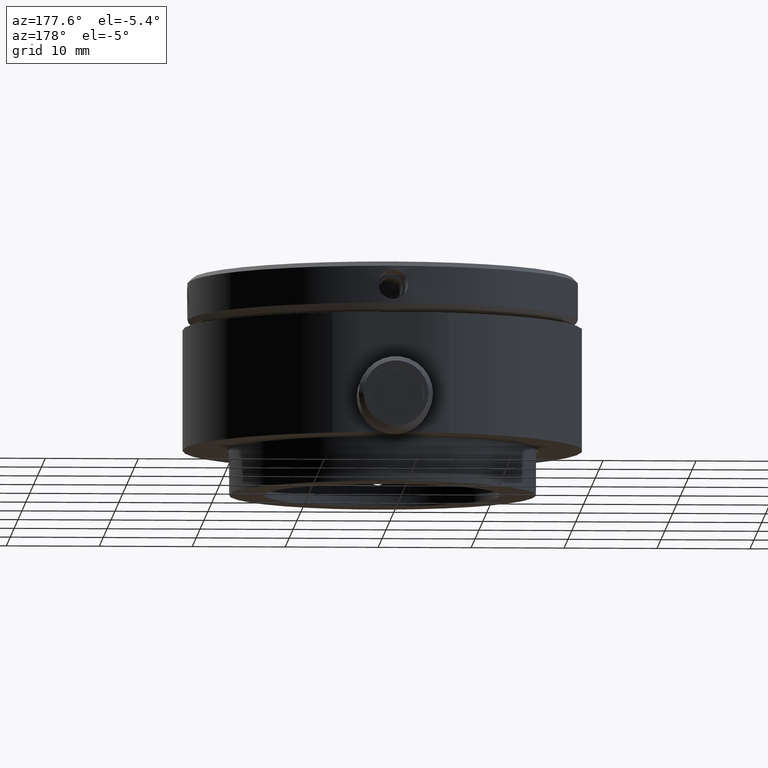
[diagram: clean part render]
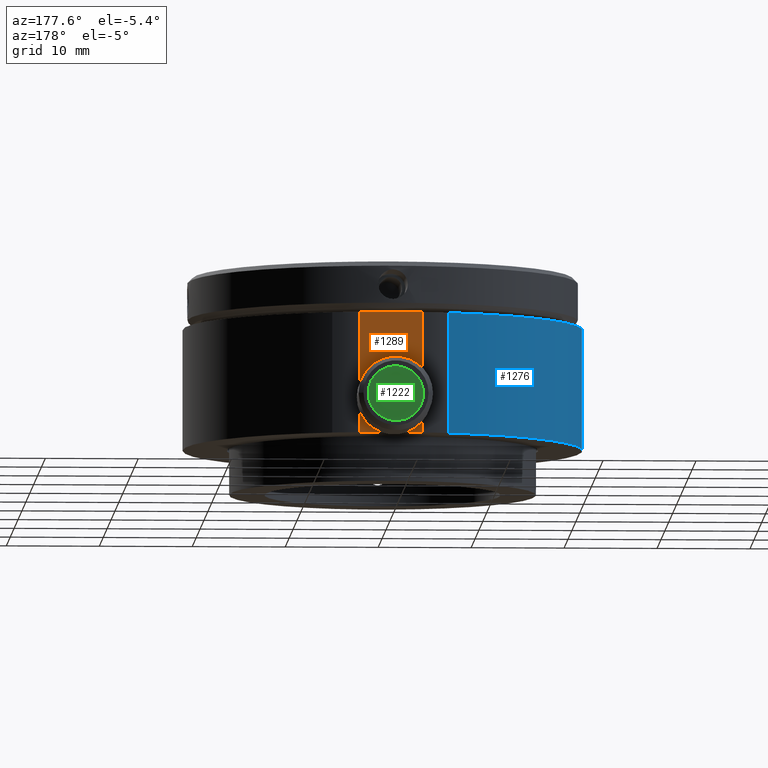
[diagram: same view with three faces highlighted in distinct colors, each labeled with its STEP entity id]
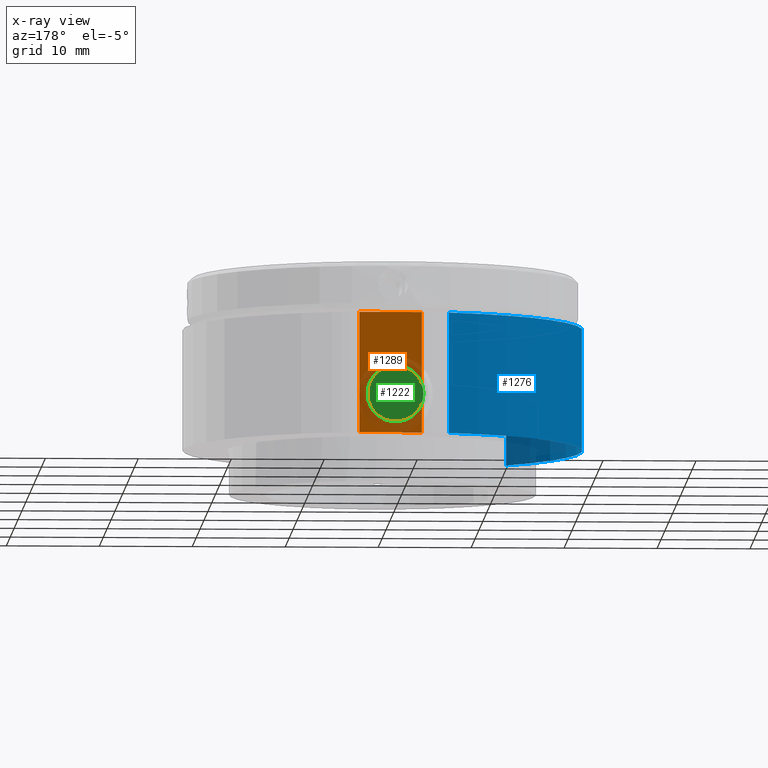
[diagram: x-ray of the same camera — body ghosted, the three highlighted faces saturated]
A machine part, auxiliary view with three faces highlighted in distinct colors.
The next image is the same camera in x-ray (body ghosted, the three faces saturated) — at least one of them is partly hidden behind the body in this view.
Their STEP definitions:

[orange] entity #1289 — the highlighted planar face has unit normal (0, -1, -0).
#48=FACE_BOUND('',#290,.T.);
#78=PLANE('',#1464);
#187=FACE_OUTER_BOUND('',#289,.T.);
#289=EDGE_LOOP('',(#1099,#1100,#1101,#1102));
#290=EDGE_LOOP('',(#1103));
#334=LINE('',#2638,#384);
#339=LINE('',#2760,#389);
#340=LINE('',#2764,#390);
#341=LINE('',#2766,#391);
#384=VECTOR('',#1786,10.);
#389=VECTOR('',#1817,10.);
#390=VECTOR('',#1822,10.);
#391=VECTOR('',#1825,10.);
#392=CIRCLE('',#1312,1.5);
#475=VERTEX_POINT('',#1830);
#580=VERTEX_POINT('',#2635);
#581=VERTEX_POINT('',#2637);
#593=VERTEX_POINT('',#2758);
#594=VERTEX_POINT('',#2762);
#595=EDGE_CURVE('',#475,#475,#392,.T.);
#743=EDGE_CURVE('',#580,#581,#334,.T.);
#762=EDGE_CURVE('',#581,#593,#339,.T.);
#764=EDGE_CURVE('',#593,#594,#340,.T.);
#765=EDGE_CURVE('',#594,#580,#341,.T.);
#1099=ORIENTED_EDGE('',*,*,#765,.F.);
#1100=ORIENTED_EDGE('',*,*,#764,.F.);
#1101=ORIENTED_EDGE('',*,*,#762,.F.);
#1102=ORIENTED_EDGE('',*,*,#743,.F.);
#1103=ORIENTED_EDGE('',*,*,#595,.T.);
#1289=ADVANCED_FACE('',(#187,#48),#78,.F.);
#1312=AXIS2_PLACEMENT_3D('',#1831,#1470,#1471);
#1464=AXIS2_PLACEMENT_3D('',#2765,#1823,#1824);
#1470=DIRECTION('center_axis',(6.12323399573676E-17,-1.,-6.12323399573677E-17));
#1471=DIRECTION('ref_axis',(-0.999997048867566,-1.22166795961323E-16,-0.00242945593888993));
#1786=DIRECTION('',(1.,6.12323399573676E-17,-6.12323399573676E-17));
#1817=DIRECTION('',(6.12323399573677E-17,-6.12323399573677E-17,1.));
#1822=DIRECTION('',(-1.,-6.12323399573676E-17,6.12323399573677E-17));
#1823=DIRECTION('center_axis',(6.12323399573676E-17,-1.,-6.12323399573677E-17));
#1824=DIRECTION('ref_axis',(-6.12323399573677E-17,6.12323399573677E-17,
-1.));
#1825=DIRECTION('',(-6.12323399573677E-17,6.12323399573677E-17,-1.));
#1830=CARTESIAN_POINT('',(22.9999955733013,48.,22.502516381194));
#1831=CARTESIAN_POINT('Origin',(21.5,48.,22.4988721972857));
#2635=CARTESIAN_POINT('',(18.1458980337503,48.,19.4988721972857));
#2637=CARTESIAN_POINT('',(24.8541019662497,48.,19.4988721972857));
#2638=CARTESIAN_POINT('',(19.1951138856768,48.,19.4988721972857));
#2758=CARTESIAN_POINT('',(24.8541019662497,48.,32.4988721972856));
#2760=CARTESIAN_POINT('',(24.8541019662497,48.,32.4988721972856));
#2762=CARTESIAN_POINT('',(18.1458980337503,48.,32.4988721972856));
#2764=CARTESIAN_POINT('',(19.1951138856768,48.,32.4988721972856));
#2765=CARTESIAN_POINT('Origin',(16.8902277713536,48.,32.4988721972856));
#2766=CARTESIAN_POINT('',(18.1458980337503,48.,32.4988721972856));

[blue] entity #1276 — the highlighted cylindrical surface (partial cylindrical patch) has radius 21.5 mm, axis along (-0, 0, -1).
#174=FACE_OUTER_BOUND('',#270,.T.);
#270=EDGE_LOOP('',(#1015,#1016,#1017,#1018));
#325=LINE('',#2596,#375);
#326=LINE('',#2600,#376);
#375=VECTOR('',#1741,10.);
#376=VECTOR('',#1744,10.);
#454=CIRCLE('',#1431,21.5);
#455=CIRCLE('',#1432,21.5);
#565=VERTEX_POINT('',#2594);
#566=VERTEX_POINT('',#2595);
#567=VERTEX_POINT('',#2597);
#568=VERTEX_POINT('',#2599);
#722=EDGE_CURVE('',#565,#566,#325,.T.);
#723=EDGE_CURVE('',#565,#567,#454,.T.);
#724=EDGE_CURVE('',#568,#567,#326,.T.);
#725=EDGE_CURVE('',#566,#568,#455,.T.);
#1015=ORIENTED_EDGE('',*,*,#722,.F.);
#1016=ORIENTED_EDGE('',*,*,#723,.T.);
#1017=ORIENTED_EDGE('',*,*,#724,.F.);
#1018=ORIENTED_EDGE('',*,*,#725,.F.);
#1136=CYLINDRICAL_SURFACE('',#1430,21.5);
#1276=ADVANCED_FACE('',(#174),#1136,.T.);
#1430=AXIS2_PLACEMENT_3D('',#2593,#1739,#1740);
#1431=AXIS2_PLACEMENT_3D('',#2598,#1742,#1743);
#1432=AXIS2_PLACEMENT_3D('',#2601,#1745,#1746);
#1739=DIRECTION('center_axis',(-6.12323399573677E-17,6.12323399573677E-17,
-1.));
#1740=DIRECTION('ref_axis',(-1.,-6.12323399573676E-17,6.12323399573677E-17));
#1741=DIRECTION('',(6.12323399573677E-17,-6.12323399573677E-17,1.));
#1742=DIRECTION('center_axis',(6.12323399573677E-17,-6.12323399573677E-17,
1.));
#1743=DIRECTION('ref_axis',(0.650106257778468,-0.759843308582286,-8.63345111701449E-17));
#1744=DIRECTION('',(-6.12323399573677E-17,6.12323399573677E-17,-1.));
#1745=DIRECTION('center_axis',(6.12323399573677E-17,-6.12323399573676E-17,
1.));
#1746=DIRECTION('ref_axis',(-1.,-6.12323399573676E-17,6.12323399573677E-17));
#2593=CARTESIAN_POINT('Origin',(21.5,27.,32.4988721972856));
#2594=CARTESIAN_POINT('',(15.2292876283158,47.5652173913044,19.4988721972856));
#2595=CARTESIAN_POINT('',(15.2292876283158,47.5652173913044,32.4988721972856));
#2596=CARTESIAN_POINT('',(15.2292876283158,47.5652173913044,32.4988721972856));
#2597=CARTESIAN_POINT('',(7.52271545776293,10.6633688654808,19.4988721972856));
#2598=CARTESIAN_POINT('Origin',(21.5,27.,19.4988721972856));
#2599=CARTESIAN_POINT('',(7.52271545776293,10.6633688654808,32.4988721972856));
#2600=CARTESIAN_POINT('',(7.52271545776293,10.6633688654808,32.4988721972856));
#2601=CARTESIAN_POINT('Origin',(21.5,27.,32.4988721972856));

[green] entity #1222 — the highlighted planar face has unit normal (0, -1, -0).
#57=PLANE('',#1318);
#120=FACE_OUTER_BOUND('',#192,.T.);
#192=EDGE_LOOP('',(#780));
#395=CIRCLE('',#1317,3.);
#482=VERTEX_POINT('',#1920);
#605=EDGE_CURVE('',#482,#482,#395,.T.);
#780=ORIENTED_EDGE('',*,*,#605,.T.);
#1222=ADVANCED_FACE('',(#120),#57,.F.);
#1317=AXIS2_PLACEMENT_3D('',#1922,#1483,#1484);
#1318=AXIS2_PLACEMENT_3D('',#1923,#1485,#1486);
#1483=DIRECTION('center_axis',(-1.22464679914735E-16,1.,1.22464679914735E-16));
#1484=DIRECTION('ref_axis',(0.999997048867566,1.22166795961323E-16,0.00242945593888993));
#1485=DIRECTION('center_axis',(1.22464679914735E-16,-1.,-1.22464679914735E-16));
#1486=DIRECTION('ref_axis',(0.999997048867566,1.22166795961323E-16,0.00242945593888993));
#1920=CARTESIAN_POINT('',(18.5000088533973,60.577566480322,22.491583829469));
#1922=CARTESIAN_POINT('Origin',(21.5,60.577566480322,22.4988721972857));
#1923=CARTESIAN_POINT('Origin',(21.5,60.577566480322,22.4988721972857));